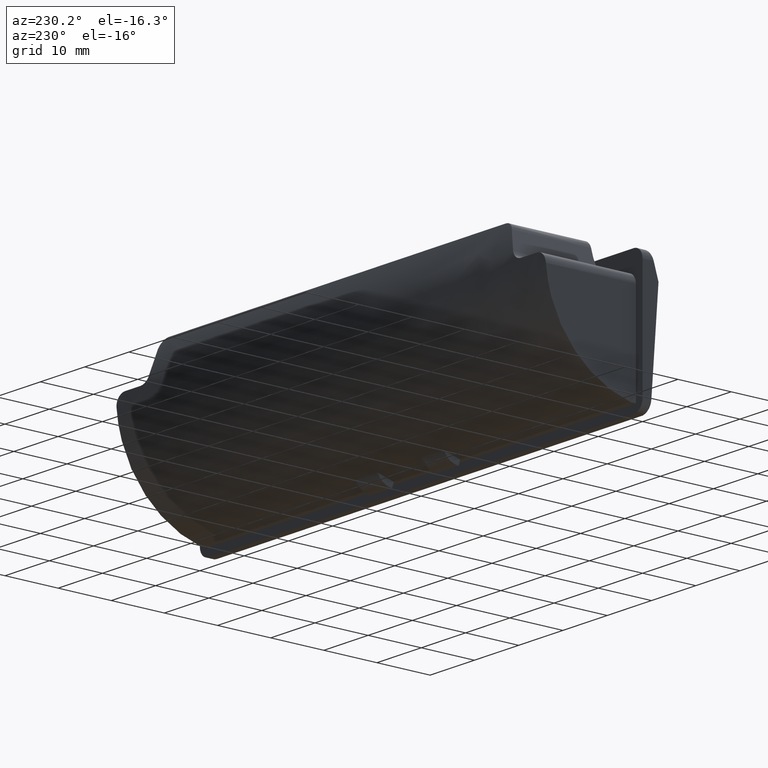
[diagram: clean part render]
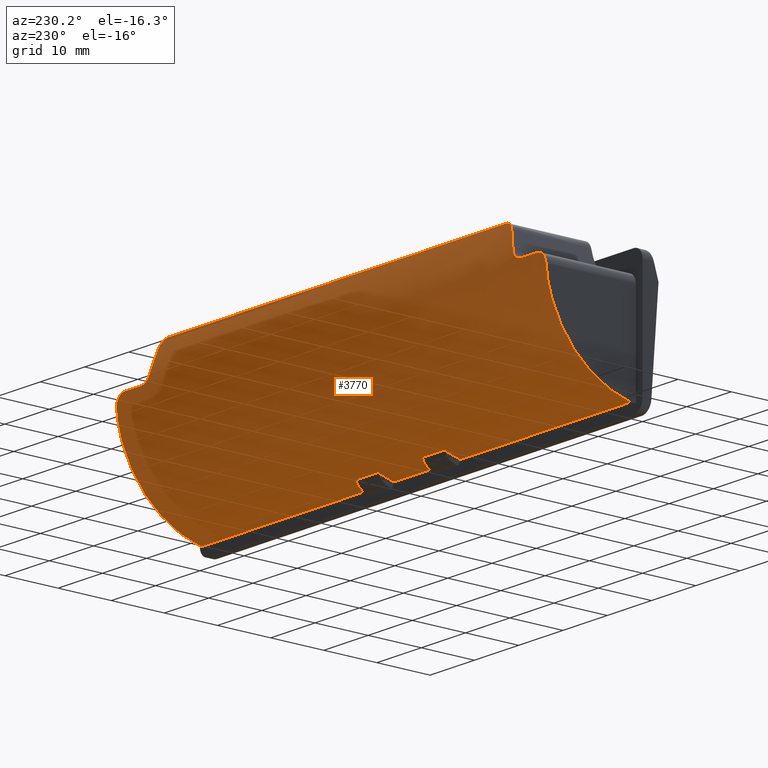
[diagram: same view with one face highlighted and labeled with its STEP entity id]
A machine part, auxiliary view. The second image highlights one B-rep face of the part: STEP entity #3770.
In plain terms, the highlighted face is a freeform B-spline surface patch.
Its self-contained STEP definition (entity closure, byte-faithful):
#58=CARTESIAN_POINT('',(-48.500000000000000,16.936224460445850,-8.500000000000000));
#59=VERTEX_POINT('',#58);
#60=CARTESIAN_POINT('',(-46.500000000000000,16.995917526767300,-6.500000000000000));
#61=VERTEX_POINT('',#60);
#62=CARTESIAN_POINT('',(-48.500000000000000,16.936224460445850,-8.500000000000000));
#63=CARTESIAN_POINT('',(-48.500000000000007,16.946767081379480,-8.368301468287195));
#64=CARTESIAN_POINT('',(-48.487117910789273,16.955830002085609,-8.238693362466826));
#65=CARTESIAN_POINT('',(-48.449179519935797,16.967401333750718,-8.047309281503974));
#66=CARTESIAN_POINT('',(-48.433408158251297,16.970920778860389,-7.984023083469351));
#67=CARTESIAN_POINT('',(-48.395460753663549,16.977313234309442,-7.858495661662105));
#68=CARTESIAN_POINT('',(-48.373180673369397,16.980189741083080,-7.796094570830041));
#69=CARTESIAN_POINT('',(-48.298089947534123,16.987744089118149,-7.614546842698606));
#70=CARTESIAN_POINT('',(-48.236786231711442,16.991425717502750,-7.499674646472360));
#71=CARTESIAN_POINT('',(-48.128086207402333,16.995397606335541,-7.336554853824461));
#72=CARTESIAN_POINT('',(-48.088883762359799,16.996465110457031,-7.283532949664604));
#73=CARTESIAN_POINT('',(-48.005350315227943,16.998139956157470,-7.181567550730984));
#74=CARTESIAN_POINT('',(-47.961389317308431,16.998742755942470,-7.133034003198278));
#75=CARTESIAN_POINT('',(-47.823125015223660,17.000008441662558,-6.994556780642089));
#76=CARTESIAN_POINT('',(-47.722500909762033,17.000132586486430,-6.911668974542001));
#77=CARTESIAN_POINT('',(-47.585896214795810,16.999832242813611,-6.820145570073938));
#78=CARTESIAN_POINT('',(-47.557954980450347,16.999748745617900,-6.802409092449610));
#79=CARTESIAN_POINT('',(-47.501514846032407,16.999547694104571,-6.768511725932236));
#80=CARTESIAN_POINT('',(-47.472979903630822,16.999430174215011,-6.752321349907540));
#81=CARTESIAN_POINT('',(-47.386447436399230,16.999042766131900,-6.705984066421078));
#82=CARTESIAN_POINT('',(-47.268601484611992,16.998434317255700,-6.650147388540859));
#83=CARTESIAN_POINT('',(-47.145887079405597,16.997788151873308,-6.606032772181696));
#84=CARTESIAN_POINT('',(-47.020703029460741,16.997182842205120,-6.567863789867993));
#85=CARTESIAN_POINT('',(-46.956577914212730,16.996899585367380,-6.551699066967096));
#86=CARTESIAN_POINT('',(-46.762776653838813,16.996192000619569,-6.512964997839176));
#87=CARTESIAN_POINT('',(-46.632121587725912,16.995917526767339,-6.499999999999998));
#88=CARTESIAN_POINT('',(-46.500000000000000,16.995917526767350,-6.500000000000000));
#89=B_SPLINE_CURVE_WITH_KNOTS('',3,(#62,#63,#64,#65,#66,#67,#68,#69,#70,#71,#72,#73,#74,#75,#76,#77,#78,#79,#80,#81,#82,#83,#84,#85,#86,#87,#88),.UNSPECIFIED.,.F.,.U.,(4,2,2,2,2,2,2,2,2,2,1,2,2,4),(0.0,0.124999999999993,0.187499999999990,0.249999999999988,0.374999999999985,0.437499999999984,0.499999999999982,0.624999999999982,0.656249999999981,0.687499999999980,0.749999999999984,0.812499999999988,0.874999999999992,1.0),.UNSPECIFIED.);
#90=EDGE_CURVE('',#59,#61,#89,.T.);
#136=CARTESIAN_POINT('',(-42.977148924420952,16.995917526767300,-6.500000000000000));
#137=VERTEX_POINT('',#136);
#138=CARTESIAN_POINT('',(-41.065590794552797,16.917391105436650,-5.088171332296571));
#139=VERTEX_POINT('',#138);
#140=CARTESIAN_POINT('',(-42.977148924420902,16.995917526767300,-6.500000000000000));
#141=CARTESIAN_POINT('',(-42.870104166547002,16.995917526767300,-6.500000000000001));
#142=CARTESIAN_POINT('',(-42.764513349618852,16.995750166678189,-6.491462461772157));
#143=CARTESIAN_POINT('',(-42.556118132414817,16.995032246542142,-6.458026990749041));
#144=CARTESIAN_POINT('',(-42.453313899814702,16.994482134764329,-6.433128062595542));
#145=CARTESIAN_POINT('',(-42.301269096249662,16.993220030046459,-6.383091412470701));
#146=CARTESIAN_POINT('',(-42.251102582852901,16.992725564636320,-6.364315684924760));
#147=CARTESIAN_POINT('',(-42.153257448587730,16.991572894827360,-6.323189265877299));
#148=CARTESIAN_POINT('',(-42.105363868376720,16.990913040417180,-6.300771048181579));
#149=CARTESIAN_POINT('',(-41.964720584900071,16.988629864062911,-6.228042553000023));
#150=CARTESIAN_POINT('',(-41.874989107447369,16.986707675595959,-6.172292994492558));
#151=CARTESIAN_POINT('',(-41.746587168197422,16.982937313622870,-6.077513167778705));
#152=CARTESIAN_POINT('',(-41.704705739947542,16.981525368074760,-6.043928530049024));
#153=CARTESIAN_POINT('',(-41.624471578347162,16.978399067614991,-5.974140753466550));
#154=CARTESIAN_POINT('',(-41.585952235808591,16.976680997793672,-5.937831115423087));
#155=CARTESIAN_POINT('',(-41.475087210954882,16.970997360199870,-5.824747817691369));
#156=CARTESIAN_POINT('',(-41.407405670118557,16.966505938156711,-5.743845305866697));
#157=CARTESIAN_POINT('',(-41.315358440360910,16.958403630862350,-5.614120121183611));
#158=CARTESIAN_POINT('',(-41.286157421075629,16.955461490613260,-5.569292737991383));
#159=CARTESIAN_POINT('',(-41.231620095655913,16.949126389600188,-5.477736330437485));
#160=CARTESIAN_POINT('',(-41.206304164032559,16.945739940757669,-5.431082053493351));
#161=CARTESIAN_POINT('',(-41.136111024023151,16.934871823682350,-5.288542498682213));
#162=CARTESIAN_POINT('',(-41.096952449653131,16.926683864114551,-5.190096780683913));
#163=CARTESIAN_POINT('',(-41.065590794552897,16.917391105436600,-5.088171332296551));
#164=B_SPLINE_CURVE_WITH_KNOTS('',3,(#140,#141,#142,#143,#144,#145,#146,#147,#148,#149,#150,#151,#152,#153,#154,#155,#156,#157,#158,#159,#160,#161,#162,#163),.UNSPECIFIED.,.F.,.U.,(4,2,2,2,2,2,2,2,2,2,2,4),(0.0,0.124999999999999,0.249999999999999,0.312500000000002,0.375000000000006,0.500000000000013,0.562500000000013,0.625000000000014,0.750000000000014,0.812500000000011,0.875000000000009,1.0),.UNSPECIFIED.);
#165=EDGE_CURVE('',#137,#139,#164,.T.);
#211=CARTESIAN_POINT('',(-39.934409205447047,16.231098599245051,-1.411828667703528));
#212=VERTEX_POINT('',#211);
#213=CARTESIAN_POINT('',(-38.022851075579148,15.770552816080301,-0.000000092986828));
#214=VERTEX_POINT('',#213);
#215=CARTESIAN_POINT('',(-39.934409205447103,16.231098599245051,-1.411828667703504));
#216=CARTESIAN_POINT('',(-39.903473860222398,16.202385168259010,-1.311288727353678));
#217=CARTESIAN_POINT('',(-39.865065201589303,16.173890781641958,-1.214495326471473));
#218=CARTESIAN_POINT('',(-39.773869599774713,16.117573709116328,-1.028040841325884));
#219=CARTESIAN_POINT('',(-39.721082878667282,16.089749678662400,-0.938380051198127));
#220=CARTESIAN_POINT('',(-39.630694336720261,16.048793534588700,-0.809371136423418));
#221=CARTESIAN_POINT('',(-39.598598846653992,16.035245587869841,-0.767206551891291));
#222=CARTESIAN_POINT('',(-39.531695759247640,16.008929194430380,-0.686170313810668));
#223=CARTESIAN_POINT('',(-39.496773488742399,15.996104002443790,-0.647117661404390));
#224=CARTESIAN_POINT('',(-39.387637313952702,15.958692230551280,-0.534288523623487));
#225=CARTESIAN_POINT('',(-39.309083483403313,15.935161015802951,-0.464812119305663));
#226=CARTESIAN_POINT('',(-39.182210499539849,15.902374167895530,-0.369452657827591));
#227=CARTESIAN_POINT('',(-39.138263236344223,15.891834476135910,-0.339060253320218));
#228=CARTESIAN_POINT('',(-39.047825136518433,15.871830468397389,-0.281776119102947));
#229=CARTESIAN_POINT('',(-39.001681901120939,15.862438055148390,-0.255087995092809));
#230=CARTESIAN_POINT('',(-38.860524582750777,15.836129619340680,-0.180765585477508));
#231=CARTESIAN_POINT('',(-38.762800355991068,15.821072347454480,-0.138835806312830));
#232=CARTESIAN_POINT('',(-38.610645833704027,15.802542119601060,-0.087577035360048));
#233=CARTESIAN_POINT('',(-38.558995361297363,15.797043712185820,-0.072439270226796));
#234=CARTESIAN_POINT('',(-38.453749703115207,15.787492764322060,-0.046217147465044));
#235=CARTESIAN_POINT('',(-38.400405104955993,15.783469617998870,-0.035213353517938));
#236=CARTESIAN_POINT('',(-38.240064417433373,15.773826456130090,-0.008881518017545));
#237=CARTESIAN_POINT('',(-38.132038374134822,15.770552781936869,-1.589824E-010));
#238=CARTESIAN_POINT('',(-38.022851075579148,15.770552816080301,-0.000000092986828));
#239=B_SPLINE_CURVE_WITH_KNOTS('',3,(#215,#216,#217,#218,#219,#220,#221,#222,#223,#224,#225,#226,#227,#228,#229,#230,#231,#232,#233,#234,#235,#236,#237,#238),.UNSPECIFIED.,.F.,.U.,(4,2,2,2,2,2,2,2,2,2,2,4),(0.0,0.125000000000006,0.250000000000011,0.312500000000012,0.375000000000013,0.500000000000014,0.562500000000014,0.625000000000015,0.750000000000015,0.812500000000011,0.875000000000008,1.0),.UNSPECIFIED.);
#240=EDGE_CURVE('',#212,#214,#239,.T.);
#286=CARTESIAN_POINT('',(38.022851075579148,15.770552816080301,-0.000000092986828));
#287=VERTEX_POINT('',#286);
#288=CARTESIAN_POINT('',(39.934409205447153,16.231098599245001,-1.411828667703484));
#289=VERTEX_POINT('',#288);
#290=CARTESIAN_POINT('',(38.022851075579148,15.770552816080301,-0.000000092986828));
#291=CARTESIAN_POINT('',(38.131976930948809,15.770552816080301,-2.176451E-015));
#292=CARTESIAN_POINT('',(38.239465551502313,15.773821883188990,-0.008869765815250));
#293=CARTESIAN_POINT('',(38.451331331656178,15.786501423700010,-0.043491346603290));
#294=CARTESIAN_POINT('',(38.555737778275827,15.795916657439330,-0.069255131200760));
#295=CARTESIAN_POINT('',(38.761239511389462,15.820822410337589,-0.138138967546965));
#296=CARTESIAN_POINT('',(38.859464791434249,15.835958565157210,-0.180287518005983));
#297=CARTESIAN_POINT('',(39.047450806968257,15.870942174669191,-0.279107377806783));
#298=CARTESIAN_POINT('',(39.137270895927337,15.890808306318551,-0.335828931546108));
#299=CARTESIAN_POINT('',(39.308094266531498,15.934858833866929,-0.463918354652177));
#300=CARTESIAN_POINT('',(39.387010705114307,15.958495000399660,-0.533701383830348));
#301=CARTESIAN_POINT('',(39.532662501810307,16.008389283780868,-0.684160882229009));
#302=CARTESIAN_POINT('',(39.599394369366408,16.034649983353798,-0.764839867815536));
#303=CARTESIAN_POINT('',(39.720487652999921,16.089441693860699,-0.937390306685184));
#304=CARTESIAN_POINT('',(39.773603285480192,16.117419105089990,-1.027534018797085));
#305=CARTESIAN_POINT('',(39.865052289567927,16.173872981872169,-1.214431370121907));
#306=CARTESIAN_POINT('',(39.903487105406640,16.202397462115091,-1.311331774231752));
#307=CARTESIAN_POINT('',(39.934409205447103,16.231098599245001,-1.411828667703492));
#308=B_SPLINE_CURVE_WITH_KNOTS('',3,(#290,#291,#292,#293,#294,#295,#296,#297,#298,#299,#300,#301,#302,#303,#304,#305,#306,#307),.UNSPECIFIED.,.F.,.U.,(4,2,2,2,2,2,2,2,4),(0.0,0.125000000000000,0.250000000000000,0.375000000000000,0.500000000000000,0.625000000000000,0.750000000000000,0.875000000000000,1.0),.UNSPECIFIED.);
#309=EDGE_CURVE('',#287,#289,#308,.T.);
#355=CARTESIAN_POINT('',(41.065590794552897,16.917391105436600,-5.088171332296540));
#356=VERTEX_POINT('',#355);
#357=CARTESIAN_POINT('',(42.977148924420952,16.995917526767300,-6.500000000000000));
#358=VERTEX_POINT('',#357);
#359=CARTESIAN_POINT('',(41.065590794552897,16.917391105436650,-5.088171332296550));
#360=CARTESIAN_POINT('',(41.096951814213099,16.926683675827640,-5.190094715502437));
#361=CARTESIAN_POINT('',(41.136012625991540,16.934843626185529,-5.288227078475715));
#362=CARTESIAN_POINT('',(41.228947380153272,16.949258670445040,-5.477177648770598));
#363=CARTESIAN_POINT('',(41.282821628356409,16.955512387813840,-5.567995806838716));
#364=CARTESIAN_POINT('',(41.375150267428879,16.963679785300378,-5.698515878242452));
#365=CARTESIAN_POINT('',(41.407776717753038,16.966189312204609,-5.740919795568884));
#366=CARTESIAN_POINT('',(41.475727650808473,16.970765264327369,-5.822325686523694));
#367=CARTESIAN_POINT('',(41.511178576496320,16.972843333963731,-5.861511443339070));
#368=CARTESIAN_POINT('',(41.621888658160472,16.978531759433530,-5.974584516413108));
#369=CARTESIAN_POINT('',(41.701477602070327,16.981599094741352,-6.044015987050772));
#370=CARTESIAN_POINT('',(41.829752903506183,16.985385905750981,-6.138997572885046));
#371=CARTESIAN_POINT('',(41.874144715783942,16.986513756963330,-6.169194269055836));
#372=CARTESIAN_POINT('',(41.964403165721322,16.988502925834030,-6.225448875033887));
#373=CARTESIAN_POINT('',(42.010426378352641,16.989369874178902,-6.251638394869386));
#374=CARTESIAN_POINT('',(42.151123035171914,16.991659752170651,-6.324510734449021));
#375=CARTESIAN_POINT('',(42.248407120043488,16.992775621420758,-6.365532787197834));
#376=CARTESIAN_POINT('',(42.399644051731620,16.994039320324259,-6.415543635997225));
#377=CARTESIAN_POINT('',(42.451155253333539,16.994392223864882,-6.430331264374167));
#378=CARTESIAN_POINT('',(42.554848187035532,16.994975766434930,-6.455635502707009));
#379=CARTESIAN_POINT('',(42.606976289527147,16.995206837642630,-6.466161144257504));
#380=CARTESIAN_POINT('',(42.764191793305251,16.995750272447530,-6.491461513450778));
#381=CARTESIAN_POINT('',(42.870105041352367,16.995917526767290,-6.499999999999996));
#382=CARTESIAN_POINT('',(42.977148924420902,16.995917526767300,-6.500000000000000));
#383=B_SPLINE_CURVE_WITH_KNOTS('',3,(#359,#360,#361,#362,#363,#364,#365,#366,#367,#368,#369,#370,#371,#372,#373,#374,#375,#376,#377,#378,#379,#380,#381,#382),.UNSPECIFIED.,.F.,.U.,(4,2,2,2,2,2,2,2,2,2,2,4),(0.0,0.124999999999992,0.249999999999985,0.312499999999983,0.374999999999982,0.499999999999979,0.562499999999980,0.624999999999981,0.749999999999985,0.812499999999987,0.874999999999988,1.0),.UNSPECIFIED.);
#384=EDGE_CURVE('',#356,#358,#383,.T.);
#430=CARTESIAN_POINT('',(46.500000000000000,16.995917526767300,-6.500000000000000));
#431=VERTEX_POINT('',#430);
#432=CARTESIAN_POINT('',(48.500000000000000,16.936224460445850,-8.500000000000000));
#433=VERTEX_POINT('',#432);
#434=CARTESIAN_POINT('',(46.500000000000000,16.995917526767300,-6.500000000000000));
#435=CARTESIAN_POINT('',(46.632124505588237,16.995917526767300,-6.500000000000000));
#436=CARTESIAN_POINT('',(46.762040483421053,16.996191435828351,-6.512963977569592));
#437=CARTESIAN_POINT('',(46.953737545509057,16.996888179840330,-6.551060138910819));
#438=CARTESIAN_POINT('',(47.017103150546667,16.997166402666512,-6.566890340784406));
#439=CARTESIAN_POINT('',(47.142743328538607,16.997772033969159,-6.604956560794180));
#440=CARTESIAN_POINT('',(47.205188398114267,16.998100448861688,-6.627300030351144));
#441=CARTESIAN_POINT('',(47.386834159931283,16.999047911311539,-6.702582801514867));
#442=CARTESIAN_POINT('',(47.501704611062209,16.999641108741852,-6.764007834996517));
#443=CARTESIAN_POINT('',(47.664754918789683,17.000008522303990,-6.872850280290879));
#444=CARTESIAN_POINT('',(47.717726806063453,17.000042125370360,-6.912080649619803));
#445=CARTESIAN_POINT('',(47.819657240961973,16.999833775272538,-6.995722364756410));
#446=CARTESIAN_POINT('',(47.868162877934267,16.999593177407611,-7.039731049866095));
#447=CARTESIAN_POINT('',(48.006531403142908,16.998335389118779,-7.178113696086299));
#448=CARTESIAN_POINT('',(48.089313376708759,16.996788425252490,-7.278784267073439));
#449=CARTESIAN_POINT('',(48.198954653799781,16.992820545142589,-7.442704249859449));
#450=CARTESIAN_POINT('',(48.232995065066767,16.991218466679999,-7.499495621711395));
#451=CARTESIAN_POINT('',(48.294681289526402,16.987447793564399,-7.614901149280883));
#452=CARTESIAN_POINT('',(48.350403336541618,16.983097466614851,-7.732737528075289));
#453=CARTESIAN_POINT('',(48.394386293489383,16.977462375217019,-7.855352383682389));
#454=CARTESIAN_POINT('',(48.432425736187383,16.971116449214090,-7.980384033823834));
#455=CARTESIAN_POINT('',(48.448525972427007,16.967570148966210,-8.044397407410454));
#456=CARTESIAN_POINT('',(48.487115736735213,16.955890171426670,-8.237931689807700));
#457=CARTESIAN_POINT('',(48.500000000000007,16.946767536004081,-8.368295789111826));
#458=CARTESIAN_POINT('',(48.500000000000000,16.936224460445850,-8.500000000000000));
#459=B_SPLINE_CURVE_WITH_KNOTS('',3,(#434,#435,#436,#437,#438,#439,#440,#441,#442,#443,#444,#445,#446,#447,#448,#449,#450,#451,#452,#453,#454,#455,#456,#457,#458),.UNSPECIFIED.,.F.,.U.,(4,2,2,2,2,2,2,2,2,1,2,2,4),(0.0,0.125000000000009,0.187500000000010,0.250000000000011,0.375000000000007,0.437500000000005,0.500000000000003,0.625000000000000,0.687500000000000,0.749999999999999,0.812499999999999,0.874999999999999,1.0),.UNSPECIFIED.);
#460=EDGE_CURVE('',#431,#433,#459,.T.);
#3167=CARTESIAN_POINT('',(-4.999999999999890,0.999999988776784,-26.499999944556251));
#3168=VERTEX_POINT('',#3167);
#3169=CARTESIAN_POINT('',(-4.999999999999890,4.000000062152076,-25.639075971973099));
#3170=VERTEX_POINT('',#3169);
#3171=CARTESIAN_POINT('',(-4.999999999999890,0.999999988776785,-26.499999944556262));
#3172=CARTESIAN_POINT('',(-4.999999999999890,2.533690483788820,-26.186936684126589));
#3173=CARTESIAN_POINT('',(-4.999999999999890,4.000000062152072,-25.639075971973089));
#3181=(BOUNDED_CURVE()B_SPLINE_CURVE(2,(#3171,#3172,#3173),.UNSPECIFIED.,.F.,.U.)CURVE()GEOMETRIC_REPRESENTATION_ITEM()QUASI_UNIFORM_CURVE()RATIONAL_B_SPLINE_CURVE((1.0,0.996951230462522,1.0))REPRESENTATION_ITEM(''));
#3182=EDGE_CURVE('',#3168,#3170,#3181,.T.);
#3212=CARTESIAN_POINT('',(-10.0,1.000000000000114,-26.500000000000000));
#3213=VERTEX_POINT('',#3212);
#3214=CARTESIAN_POINT('',(-10.0,4.000000062152070,-25.639075971973099));
#3215=VERTEX_POINT('',#3214);
#3216=CARTESIAN_POINT('',(-10.0,1.000000000000114,-26.500000000000000));
#3217=CARTESIAN_POINT('',(-10.0,2.533690483745382,-26.186936684142818));
#3218=CARTESIAN_POINT('',(-10.0,4.000000062152067,-25.639075971973089));
#3226=(BOUNDED_CURVE()B_SPLINE_CURVE(2,(#3216,#3217,#3218),.UNSPECIFIED.,.F.,.U.)CURVE()GEOMETRIC_REPRESENTATION_ITEM()QUASI_UNIFORM_CURVE()RATIONAL_B_SPLINE_CURVE((1.0,0.996951230462343,1.0))REPRESENTATION_ITEM(''));
#3227=EDGE_CURVE('',#3213,#3215,#3226,.T.);
#3289=CARTESIAN_POINT('',(-10.0,4.000000062152070,-25.639075971973099));
#3290=CARTESIAN_POINT('',(-4.999999999999890,4.000000062152076,-25.639075971973099));
#3291=QUASI_UNIFORM_CURVE('',1,(#3289,#3290),.UNSPECIFIED.,.F.,.U.);
#3292=EDGE_CURVE('',#3215,#3170,#3291,.T.);
#3302=CARTESIAN_POINT('',(4.999999999999890,1.000000000000114,-26.500000000000000));
#3303=VERTEX_POINT('',#3302);
#3304=CARTESIAN_POINT('',(4.999999999999890,4.000000062152076,-25.639075971973099));
#3305=VERTEX_POINT('',#3304);
#3306=CARTESIAN_POINT('',(4.999999999999890,1.000000000000114,-26.500000000000000));
#3307=CARTESIAN_POINT('',(4.999999999999890,2.533690483745395,-26.186936684142818));
#3308=CARTESIAN_POINT('',(4.999999999999890,4.000000062152072,-25.639075971973089));
#3316=(BOUNDED_CURVE()B_SPLINE_CURVE(2,(#3306,#3307,#3308),.UNSPECIFIED.,.F.,.U.)CURVE()GEOMETRIC_REPRESENTATION_ITEM()QUASI_UNIFORM_CURVE()RATIONAL_B_SPLINE_CURVE((1.0,0.996951230462343,1.0))REPRESENTATION_ITEM(''));
#3317=EDGE_CURVE('',#3303,#3305,#3316,.T.);
#3347=CARTESIAN_POINT('',(10.0,0.999999988776784,-26.499999944556251));
#3348=VERTEX_POINT('',#3347);
#3349=CARTESIAN_POINT('',(10.0,4.000000062152070,-25.639075971973099));
#3350=VERTEX_POINT('',#3349);
#3351=CARTESIAN_POINT('',(10.0,0.999999988776785,-26.499999944556262));
#3352=CARTESIAN_POINT('',(10.0,2.533690483788808,-26.186936684126593));
#3353=CARTESIAN_POINT('',(10.0,4.000000062152067,-25.639075971973089));
#3361=(BOUNDED_CURVE()B_SPLINE_CURVE(2,(#3351,#3352,#3353),.UNSPECIFIED.,.F.,.U.)CURVE()GEOMETRIC_REPRESENTATION_ITEM()QUASI_UNIFORM_CURVE()RATIONAL_B_SPLINE_CURVE((1.0,0.996951230462522,1.0))REPRESENTATION_ITEM(''));
#3362=EDGE_CURVE('',#3348,#3350,#3361,.T.);
#3422=CARTESIAN_POINT('',(10.0,4.000000062152070,-25.639075971973099));
#3423=CARTESIAN_POINT('',(4.999999999999890,4.000000062152076,-25.639075971973099));
#3424=QUASI_UNIFORM_CURVE('',1,(#3422,#3423),.UNSPECIFIED.,.F.,.U.);
#3425=EDGE_CURVE('',#3350,#3305,#3424,.T.);
#3443=CARTESIAN_POINT('',(42.977148924420952,16.995917526767300,-6.500000000000000));
#3444=CARTESIAN_POINT('',(46.500000000000000,16.995917526767300,-6.500000000000000));
#3445=QUASI_UNIFORM_CURVE('',1,(#3443,#3444),.UNSPECIFIED.,.F.,.U.);
#3446=EDGE_CURVE('',#358,#431,#3445,.T.);
#3465=CARTESIAN_POINT('',(39.934409205447132,16.231098599245001,-1.411828667703429));
#3466=CARTESIAN_POINT('',(40.490084911913570,16.746863202237066,-3.217775941805865));
#3467=CARTESIAN_POINT('',(41.065590794552897,16.917391105436600,-5.088171332296540));
#3475=(BOUNDED_CURVE()B_SPLINE_CURVE(2,(#3465,#3466,#3467),.UNSPECIFIED.,.F.,.U.)CURVE()GEOMETRIC_REPRESENTATION_ITEM()QUASI_UNIFORM_CURVE()RATIONAL_B_SPLINE_CURVE((1.0,0.995619627169558,1.0))REPRESENTATION_ITEM(''));
#3476=EDGE_CURVE('',#289,#356,#3475,.T.);
#3512=CARTESIAN_POINT('',(-46.500000000000000,16.995917526767300,-6.500000000000000));
#3513=CARTESIAN_POINT('',(-42.977148924420952,16.995917526767300,-6.500000000000000));
#3514=QUASI_UNIFORM_CURVE('',1,(#3512,#3513),.UNSPECIFIED.,.F.,.U.);
#3515=EDGE_CURVE('',#61,#137,#3514,.T.);
#3534=CARTESIAN_POINT('',(-41.065590794552797,16.917391105436650,-5.088171332296571));
#3535=CARTESIAN_POINT('',(-40.490084911913577,16.746863202237147,-3.217775941806237));
#3536=CARTESIAN_POINT('',(-39.934409205447082,16.231098599245051,-1.411828667703601));
#3544=(BOUNDED_CURVE()B_SPLINE_CURVE(2,(#3534,#3535,#3536),.UNSPECIFIED.,.F.,.U.)CURVE()GEOMETRIC_REPRESENTATION_ITEM()QUASI_UNIFORM_CURVE()RATIONAL_B_SPLINE_CURVE((1.0,0.995619627169594,1.0))REPRESENTATION_ITEM(''));
#3545=EDGE_CURVE('',#139,#212,#3544,.T.);
#3583=CARTESIAN_POINT('',(-48.500000000000000,0.999999988776784,-26.499999944556251));
#3584=VERTEX_POINT('',#3583);
#3585=CARTESIAN_POINT('',(-48.500000000000000,0.999999988776785,-26.499999944556262));
#3586=CARTESIAN_POINT('',(-48.500000000000000,15.736096847485936,-23.492006778008893));
#3587=CARTESIAN_POINT('',(-48.500000000000000,16.936224460445871,-8.500000000000002));
#3595=(BOUNDED_CURVE()B_SPLINE_CURVE(2,(#3585,#3586,#3587),.UNSPECIFIED.,.F.,.U.)CURVE()GEOMETRIC_REPRESENTATION_ITEM()QUASI_UNIFORM_CURVE()RATIONAL_B_SPLINE_CURVE((1.0,0.799232738156004,1.0))REPRESENTATION_ITEM(''));
#3596=EDGE_CURVE('',#3584,#59,#3595,.T.);
#3611=CARTESIAN_POINT('',(48.500000000000000,0.999999988776784,-26.499999944556251));
#3612=VERTEX_POINT('',#3611);
#3613=CARTESIAN_POINT('',(48.500000000000000,0.999999988776785,-26.499999944556262));
#3614=CARTESIAN_POINT('',(48.500000000000000,15.736096847485936,-23.492006778008893));
#3615=CARTESIAN_POINT('',(48.500000000000000,16.936224460445871,-8.500000000000002));
#3623=(BOUNDED_CURVE()B_SPLINE_CURVE(2,(#3613,#3614,#3615),.UNSPECIFIED.,.F.,.U.)CURVE()GEOMETRIC_REPRESENTATION_ITEM()QUASI_UNIFORM_CURVE()RATIONAL_B_SPLINE_CURVE((1.0,0.799232738156004,1.0))REPRESENTATION_ITEM(''));
#3624=EDGE_CURVE('',#3612,#433,#3623,.T.);
#3702=CARTESIAN_POINT('',(-10.0,1.000000000000114,-26.500000000000000));
#3703=CARTESIAN_POINT('',(-48.500000000000000,0.999999988776784,-26.499999944556251));
#3704=QUASI_UNIFORM_CURVE('',1,(#3702,#3703),.UNSPECIFIED.,.F.,.U.);
#3705=EDGE_CURVE('',#3213,#3584,#3704,.T.);
#3708=CARTESIAN_POINT('',(4.999999999999890,1.000000000000114,-26.500000000000000));
#3709=CARTESIAN_POINT('',(-4.999999999999890,0.999999988776784,-26.499999944556251));
#3710=QUASI_UNIFORM_CURVE('',1,(#3708,#3709),.UNSPECIFIED.,.F.,.U.);
#3711=EDGE_CURVE('',#3303,#3168,#3710,.T.);
#3714=CARTESIAN_POINT('',(48.500000000000000,0.999999988776784,-26.499999944556251));
#3715=CARTESIAN_POINT('',(10.0,0.999999988776784,-26.499999944556251));
#3716=QUASI_UNIFORM_CURVE('',1,(#3714,#3715),.UNSPECIFIED.,.F.,.U.);
#3717=EDGE_CURVE('',#3612,#3348,#3716,.T.);
#3728=CARTESIAN_POINT('',(50.925000000000011,0.367810861077712,-26.618489168464460));
#3729=CARTESIAN_POINT('',(-50.985625000000027,0.367810861077712,-26.618489168464460));
#3730=CARTESIAN_POINT('',(50.925000000000018,25.973129431867196,-22.244334305618910));
#3731=CARTESIAN_POINT('',(-50.985625000000027,25.973129431867196,-22.244334305618910));
#3732=CARTESIAN_POINT('',(50.925000000000004,15.198290803467621,1.391833370375458));
#3733=CARTESIAN_POINT('',(-50.985625000000027,15.198290803467621,1.391833370375458));
#3741=(BOUNDED_SURFACE()B_SPLINE_SURFACE(1,2,((#3728,#3730,#3732),(#3729,#3731,#3733)),.UNSPECIFIED.,.F.,.F.,.U.)B_SPLINE_SURFACE_WITH_KNOTS((2,2),(3,3),(0.0,101.910625000000100),(0.0,39.370162400700323),.UNSPECIFIED.)GEOMETRIC_REPRESENTATION_ITEM()RATIONAL_B_SPLINE_SURFACE(((1.0,0.609568972372834,0.998388246922048),(1.0,0.609568972372834,0.998388246922048)))REPRESENTATION_ITEM('')SURFACE());
#3742=ORIENTED_EDGE('',*,*,#3446,.T.);
#3743=ORIENTED_EDGE('',*,*,#460,.T.);
#3744=ORIENTED_EDGE('',*,*,#3624,.F.);
#3745=ORIENTED_EDGE('',*,*,#3717,.T.);
#3746=ORIENTED_EDGE('',*,*,#3362,.T.);
#3747=ORIENTED_EDGE('',*,*,#3425,.T.);
#3748=ORIENTED_EDGE('',*,*,#3317,.F.);
#3749=ORIENTED_EDGE('',*,*,#3711,.T.);
#3750=ORIENTED_EDGE('',*,*,#3182,.T.);
#3751=ORIENTED_EDGE('',*,*,#3292,.F.);
#3752=ORIENTED_EDGE('',*,*,#3227,.F.);
#3753=ORIENTED_EDGE('',*,*,#3705,.T.);
#3754=ORIENTED_EDGE('',*,*,#3596,.T.);
#3755=ORIENTED_EDGE('',*,*,#90,.T.);
#3756=ORIENTED_EDGE('',*,*,#3515,.T.);
#3757=ORIENTED_EDGE('',*,*,#165,.T.);
#3758=ORIENTED_EDGE('',*,*,#3545,.T.);
#3759=ORIENTED_EDGE('',*,*,#240,.T.);
#3760=CARTESIAN_POINT('',(38.022851075579148,15.770552816080301,-0.000000092986828));
#3761=CARTESIAN_POINT('',(-38.022851075579148,15.770552816080301,-0.000000092986828));
#3762=QUASI_UNIFORM_CURVE('',1,(#3760,#3761),.UNSPECIFIED.,.F.,.U.);
#3763=EDGE_CURVE('',#287,#214,#3762,.T.);
#3764=ORIENTED_EDGE('',*,*,#3763,.F.);
#3765=ORIENTED_EDGE('',*,*,#309,.T.);
#3766=ORIENTED_EDGE('',*,*,#3476,.T.);
#3767=ORIENTED_EDGE('',*,*,#384,.T.);
#3768=EDGE_LOOP('',(#3742,#3743,#3744,#3745,#3746,#3747,#3748,#3749,#3750,#3751,#3752,#3753,#3754,#3755,#3756,#3757,#3758,#3759,#3764,#3765,#3766,#3767));
#3769=FACE_OUTER_BOUND('',#3768,.T.);
#3770=ADVANCED_FACE('',(#3769),#3741,.T.);